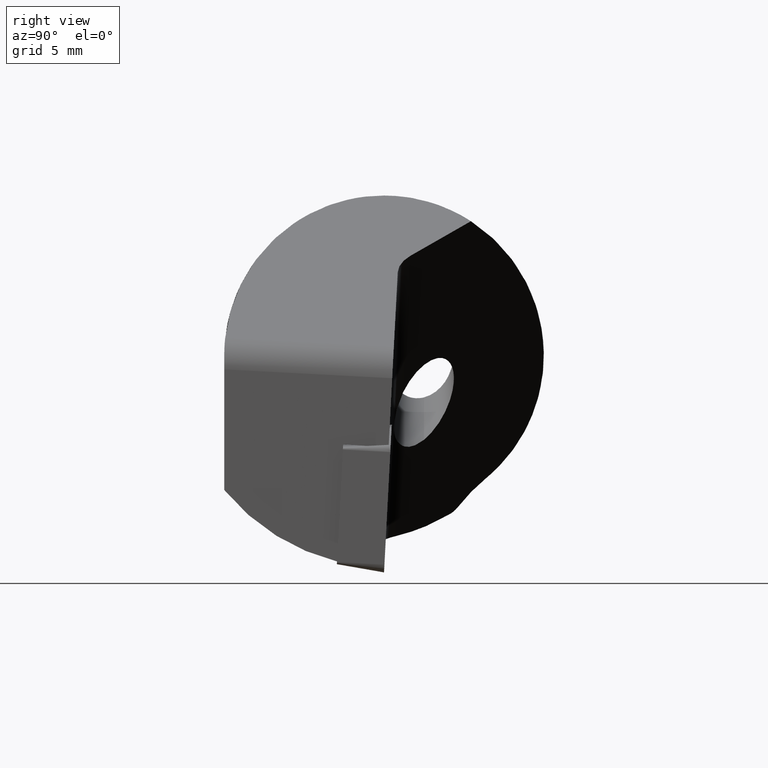
[diagram: clean part render]
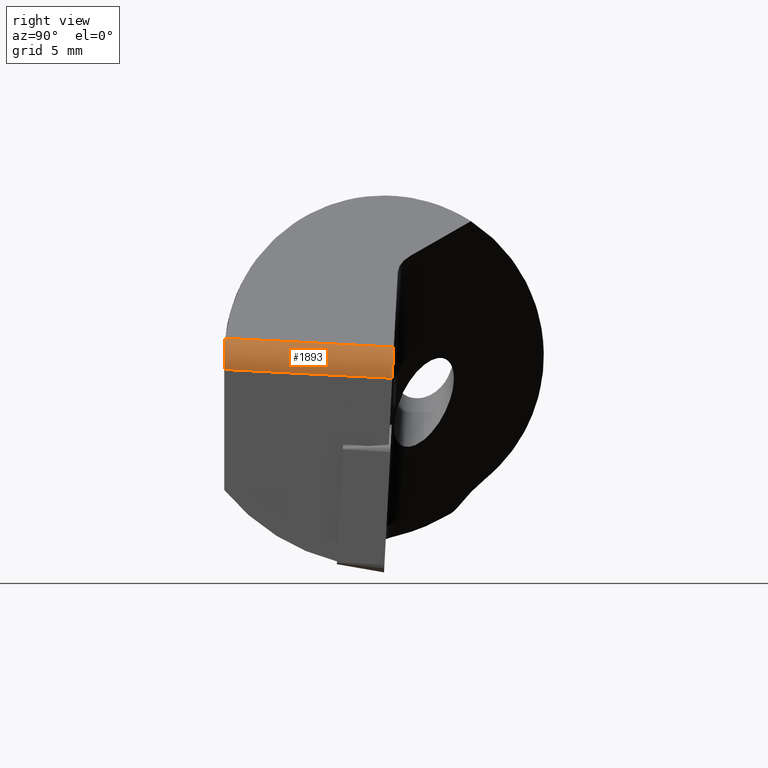
[diagram: same view with one face highlighted and labeled with its STEP entity id]
A machine part, right view. The second image highlights one B-rep face of the part: STEP entity #1893.
In plain terms, the highlighted cylindrical surface (edge-blend (fillet) strip) has radius 1.8015 mm, axis along (-0.1219, -0.9912, 0.0519).
Its self-contained STEP definition (entity closure, byte-faithful):
#367 = VERTEX_POINT ( 'NONE', #3983 ) ;
#380 = EDGE_CURVE ( 'NONE', #638, #4110, #2963, .T. ) ;
#608 = EDGE_CURVE ( 'NONE', #4423, #2478, #2371, .T. ) ;
#638 = VERTEX_POINT ( 'NONE', #3231 ) ;
#653 = VECTOR ( 'NONE', #2007, 1000.000000000000100 ) ;
#769 = ORIENTED_EDGE ( 'NONE', *, *, #380, .T. ) ;
#976 = CARTESIAN_POINT ( 'NONE',  ( -1.246269372202885900, -7.999999999999970700, 10.16784605392947300 ) ) ;
#991 = CARTESIAN_POINT ( 'NONE',  ( -1.247836473323724200, -7.999999999999965400, 10.41171308784110900 ) ) ;
#1026 = CARTESIAN_POINT ( 'NONE',  ( -1.396078467881369400, -7.999999999999967100, 10.87499999999999800 ) ) ;
#1042 = CARTESIAN_POINT ( 'NONE',  ( -1.298454939397404500, -7.999999999999966200, 10.65065083635311900 ) ) ;
#1063 = ORIENTED_EDGE ( 'NONE', *, *, #3343, .F. ) ;
#1108 = DIRECTION ( 'NONE',  ( 0.1218693434051441000, 0.9911859016360163900, -0.05194585196140608800 ) ) ;
#1121 = VECTOR ( 'NONE', #1108, 1000.000000000000000 ) ;
#1194 = CARTESIAN_POINT ( 'NONE',  ( 0.2376821559921313000, 4.069252138073313300, 9.535323351765912400 ) ) ;
#1210 = ORIENTED_EDGE ( 'NONE', *, *, #3580, .T. ) ;
#1686 = CARTESIAN_POINT ( 'NONE',  ( -2.158214616245849100, -7.954422829592213700, 11.72773527431548300 ) ) ;
#1796 = ORIENTED_EDGE ( 'NONE', *, *, #3600, .T. ) ;
#1893 = ADVANCED_FACE ( 'NONE', ( #2727 ), #2628, .T. ) ;
#1970 = CARTESIAN_POINT ( 'NONE',  ( -0.6563492093354028600, 4.260526196067880600, 11.08757692182506600 ) ) ;
#2007 = DIRECTION ( 'NONE',  ( 0.1218693434051425100, 0.9911859016360166100, -0.05194585196140347900 ) ) ;
#2174 = LINE ( 'NONE', #1194, #1121 ) ;
#2371 = B_SPLINE_CURVE_WITH_KNOTS ( 'NONE', 3,
 ( #3263, #4211, #3993, #3267, #3273, #4262 ),
 .UNSPECIFIED., .F., .F.,
 ( 4, 2, 4 ),
 ( 2.045668567712605500E-018, 0.0005790251835047048600, 0.001158050367009407600 ),
 .UNSPECIFIED. ) ;
#2478 = VERTEX_POINT ( 'NONE', #1686 ) ;
#2591 = CARTESIAN_POINT ( 'NONE',  ( -1.119788281549142900, 0.4912905391688565100, 11.28511419219760200 ) ) ;
#2628 = CYLINDRICAL_SURFACE ( 'NONE', #3592, 1.801490769671724200 ) ;
#2727 = FACE_OUTER_BOUND ( 'NONE', #3490, .T. ) ;
#2963 =( BOUNDED_CURVE ( )  B_SPLINE_CURVE ( 3, ( #3923, #3932, #3916, #3914 ),
 .UNSPECIFIED., .F., .F. ) 
 B_SPLINE_CURVE_WITH_KNOTS ( ( 4, 4 ),
 ( 3.141592653589794400, 4.188790204786394100 ),
 .UNSPECIFIED. ) 
 CURVE ( )  GEOMETRIC_REPRESENTATION_ITEM ( )  RATIONAL_B_SPLINE_CURVE ( ( 1.000000000000000000, 0.9106836025229587700, 0.9106836025229587700, 1.000000000000000000 ) ) 
 REPRESENTATION_ITEM ( '' )  );
#2980 = DIRECTION ( 'NONE',  ( -0.1218693434051410600, -0.9911859016360168300, 0.05194585196140617100 ) ) ;
#3007 = DIRECTION ( 'NONE',  ( 0.9925259080349164700, -0.1220341012974022500, 0.0000000000000000000 ) ) ;
#3063 = CARTESIAN_POINT ( 'NONE',  ( -1.985092303282645500, 0.7529068942638308400, 9.709125641329853500 ) ) ;
#3231 = CARTESIAN_POINT ( 'NONE',  ( -0.2122784560902897800, 0.4096392893773305700, 9.727115534201765000 ) ) ;
#3263 = CARTESIAN_POINT ( 'NONE',  ( -1.396078467881369400, -7.999999999999967100, 10.87499999999999800 ) ) ;
#3267 = CARTESIAN_POINT ( 'NONE',  ( -1.837846792179636900, -7.976235518147198900, 11.50819194275218700 ) ) ;
#3273 = CARTESIAN_POINT ( 'NONE',  ( -1.988563184930415700, -7.964840817600730800, 11.63055496038995300 ) ) ;
#3343 = EDGE_CURVE ( 'NONE', #2478, #4110, #3692, .T. ) ;
#3490 = EDGE_LOOP ( 'NONE', ( #4151, #1796, #1210, #769, #1063 ) ) ;
#3580 = EDGE_CURVE ( 'NONE', #367, #638, #2174, .T. ) ;
#3592 = AXIS2_PLACEMENT_3D ( 'NONE', #3063, #2980, #3007 ) ;
#3600 = EDGE_CURVE ( 'NONE', #4423, #367, #3912, .T. ) ;
#3692 = LINE ( 'NONE', #1970, #653 ) ;
#3912 =( BOUNDED_CURVE ( )  B_SPLINE_CURVE ( 3, ( #1026, #1042, #991, #976 ),
 .UNSPECIFIED., .F., .F. ) 
 B_SPLINE_CURVE_WITH_KNOTS ( ( 4, 4 ),
 ( 2.332662315342109800, 2.735467161129466100 ),
 .UNSPECIFIED. ) 
 CURVE ( )  GEOMETRIC_REPRESENTATION_ITEM ( )  RATIONAL_B_SPLINE_CURVE ( ( 1.000000000000000000, 0.9865246638149283200, 0.9865246638149283200, 1.000000000000000000 ) ) 
 REPRESENTATION_ITEM ( '' )  );
#3914 = CARTESIAN_POINT ( 'NONE',  ( -1.119788281549142900, 0.4912905391688565100, 11.28511419219760200 ) ) ;
#3916 = CARTESIAN_POINT ( 'NONE',  ( -0.5444501063922213600, 0.4740355997964965100, 10.95587033549516500 ) ) ;
#3923 = CARTESIAN_POINT ( 'NONE',  ( -0.2122784560902897800, 0.4096392893773305700, 9.727115534201765000 ) ) ;
#3932 = CARTESIAN_POINT ( 'NONE',  ( -0.2122784560903016300, 0.4441491681220494600, 10.38560324760662800 ) ) ;
#3983 = CARTESIAN_POINT ( 'NONE',  ( -1.246269372202885900, -7.999999999999970700, 10.16784605392947300 ) ) ;
#3993 = CARTESIAN_POINT ( 'NONE',  ( -1.578107998121144600, -7.994013017625875700, 11.21708325207073800 ) ) ;
#4110 = VERTEX_POINT ( 'NONE', #2591 ) ;
#4151 = ORIENTED_EDGE ( 'NONE', *, *, #608, .F. ) ;
#4173 = CARTESIAN_POINT ( 'NONE',  ( -1.396078467881369400, -7.999999999999967100, 10.87499999999999800 ) ) ;
#4211 = CARTESIAN_POINT ( 'NONE',  ( -1.474200232558547700, -7.999999999999983100, 11.05453205380015700 ) ) ;
#4262 = CARTESIAN_POINT ( 'NONE',  ( -2.158214616245849100, -7.954422829592213700, 11.72773527431548300 ) ) ;
#4423 = VERTEX_POINT ( 'NONE', #4173 ) ;